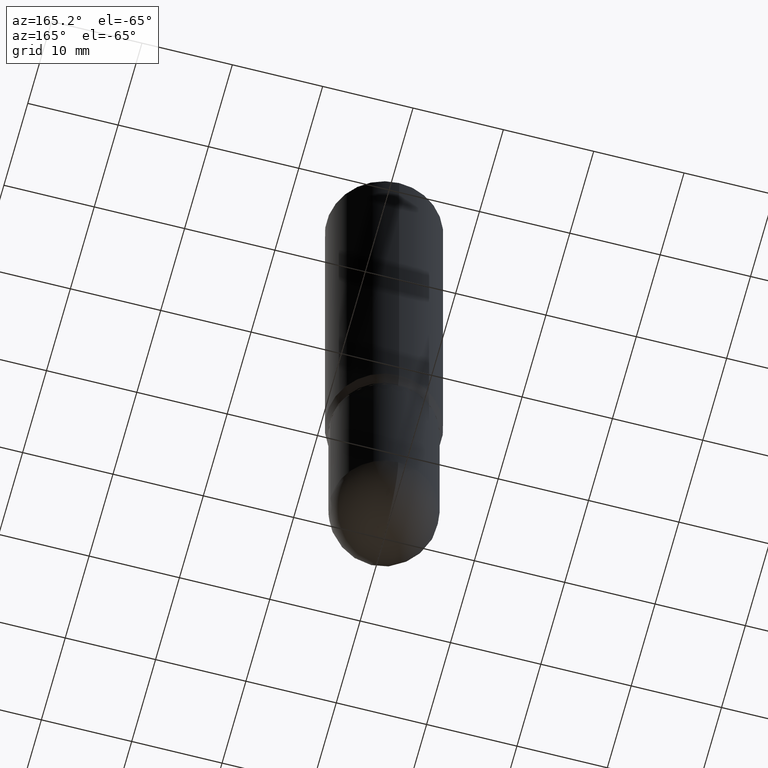
[diagram: clean part render]
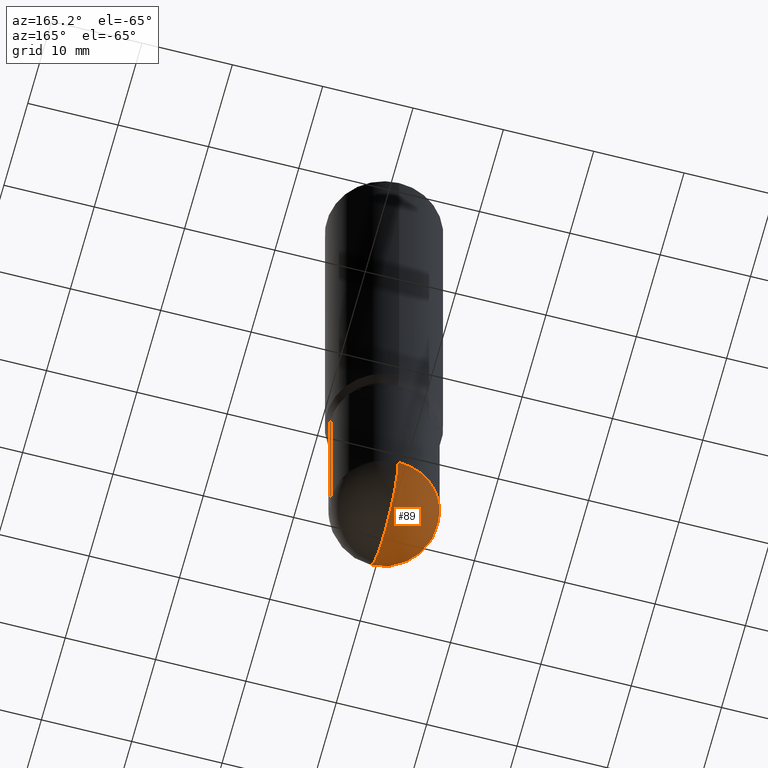
[diagram: same view with one face highlighted and labeled with its STEP entity id]
A machine part, auxiliary view. The second image highlights one B-rep face of the part: STEP entity #89.
In plain terms, the highlighted spherical surface has radius 5.9538 mm.
Its self-contained STEP definition (entity closure, byte-faithful):
#10 = CARTESIAN_POINT ( 'NONE',  ( 6.743143432567249767E-29, -9.684746511676618226E-15, -2.765600000000000058 ) ) ;
#27 = CARTESIAN_POINT ( 'NONE',  ( 6.743143432567249767E-29, -9.684746511676618226E-15, -2.765600000000000058 ) ) ;
#61 = AXIS2_PLACEMENT_3D ( 'NONE', #10, #371, #243 ) ;
#65 = CARTESIAN_POINT ( 'NONE',  ( 7.326383869646227962E-29, -1.048879687701544429E-14, -3.000000000000000444 ) ) ;
#70 = DIRECTION ( 'NONE',  ( 6.982962677686265922E-15, 1.000000000000000000, -2.330928322239131291E-15 ) ) ;
#79 = EDGE_CURVE ( 'NONE', #217, #414, #83, .T. ) ;
#83 = CIRCLE ( 'NONE', #443, 0.2344000000000000250 ) ;
#86 = ORIENTED_EDGE ( 'NONE', *, *, #303, .T. ) ;
#89 = ADVANCED_FACE ( 'NONE', ( #344 ), #138, .T. ) ;
#91 = DIRECTION ( 'NONE',  ( -2.445468806185136597E-29, 3.491481338843145583E-15, 1.000000000000000000 ) ) ;
#110 = DIRECTION ( 'NONE',  ( -2.445468806185136597E-29, 3.491481338843145583E-15, 1.000000000000000000 ) ) ;
#126 = CARTESIAN_POINT ( 'NONE',  ( 6.743143432567249767E-29, -9.684746511676618226E-15, -2.765600000000000058 ) ) ;
#127 = VERTEX_POINT ( 'NONE', #65 ) ;
#138 = SPHERICAL_SURFACE ( 'NONE', #394, 0.2344000000000001083 ) ;
#157 = AXIS2_PLACEMENT_3D ( 'NONE', #323, #91, #170 ) ;
#166 = ORIENTED_EDGE ( 'NONE', *, *, #381, .F. ) ;
#170 = DIRECTION ( 'NONE',  ( 1.000000000000000000, -6.982962677686269077E-15, 0.000000000000000000 ) ) ;
#191 = CIRCLE ( 'NONE', #157, 0.2344000000000000250 ) ;
#217 = VERTEX_POINT ( 'NONE', #351 ) ;
#242 = CIRCLE ( 'NONE', #395, 0.2344000000000001083 ) ;
#243 = DIRECTION ( 'NONE',  ( 6.982962677686265922E-15, 1.000000000000000000, 0.000000000000000000 ) ) ;
#283 = VERTEX_POINT ( 'NONE', #439 ) ;
#285 = CIRCLE ( 'NONE', #61, 0.2344000000000001083 ) ;
#303 = EDGE_CURVE ( 'NONE', #127, #414, #242, .T. ) ;
#323 = CARTESIAN_POINT ( 'NONE',  ( 6.763188530385615666E-29, -9.656040790704605504E-15, -2.765600000000000502 ) ) ;
#332 = CARTESIAN_POINT ( 'NONE',  ( -1.665512172621607566E-15, -0.2344000000000097395, -2.765600000000000058 ) ) ;
#334 = DIRECTION ( 'NONE',  ( -7.105427357601000281E-15, -1.000000000000000000, 0.000000000000000000 ) ) ;
#343 = ORIENTED_EDGE ( 'NONE', *, *, #422, .F. ) ;
#344 = FACE_OUTER_BOUND ( 'NONE', #403, .T. ) ;
#351 = CARTESIAN_POINT ( 'NONE',  ( -0.2344000000000000250, -6.653989561573773518E-15, -2.765600000000000502 ) ) ;
#371 = DIRECTION ( 'NONE',  ( 1.000000000000000000, -6.982962677686265922E-15, 4.883557194083112340E-29 ) ) ;
#381 = EDGE_CURVE ( 'NONE', #127, #283, #285, .T. ) ;
#394 = AXIS2_PLACEMENT_3D ( 'NONE', #27, #497, #70 ) ;
#395 = AXIS2_PLACEMENT_3D ( 'NONE', #126, #451, #334 ) ;
#403 = EDGE_LOOP ( 'NONE', ( #166, #86, #442, #343 ) ) ;
#414 = VERTEX_POINT ( 'NONE', #332 ) ;
#422 = EDGE_CURVE ( 'NONE', #283, #217, #191, .T. ) ;
#423 = CARTESIAN_POINT ( 'NONE',  ( 6.763188530385615666E-29, -9.656040790704605504E-15, -2.765600000000000502 ) ) ;
#427 = DIRECTION ( 'NONE',  ( 1.000000000000000000, -6.982962677686269077E-15, 0.000000000000000000 ) ) ;
#439 = CARTESIAN_POINT ( 'NONE',  ( 1.636806451649728555E-15, 0.2343999999999903938, -2.765600000000001391 ) ) ;
#442 = ORIENTED_EDGE ( 'NONE', *, *, #79, .F. ) ;
#443 = AXIS2_PLACEMENT_3D ( 'NONE', #423, #110, #427 ) ;
#451 = DIRECTION ( 'NONE',  ( -1.000000000000000000, 7.105427357601001070E-15, -4.926315508542082329E-29 ) ) ;
#497 = DIRECTION ( 'NONE',  ( -1.000000000000000000, 6.982962677686265922E-15, -4.883557194083112901E-29 ) ) ;